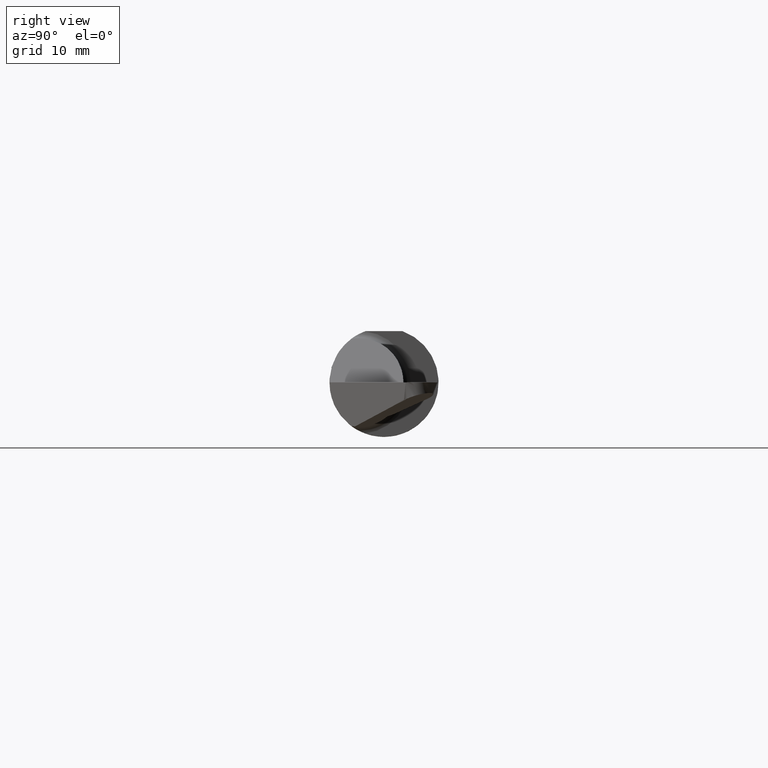
[diagram: clean part render]
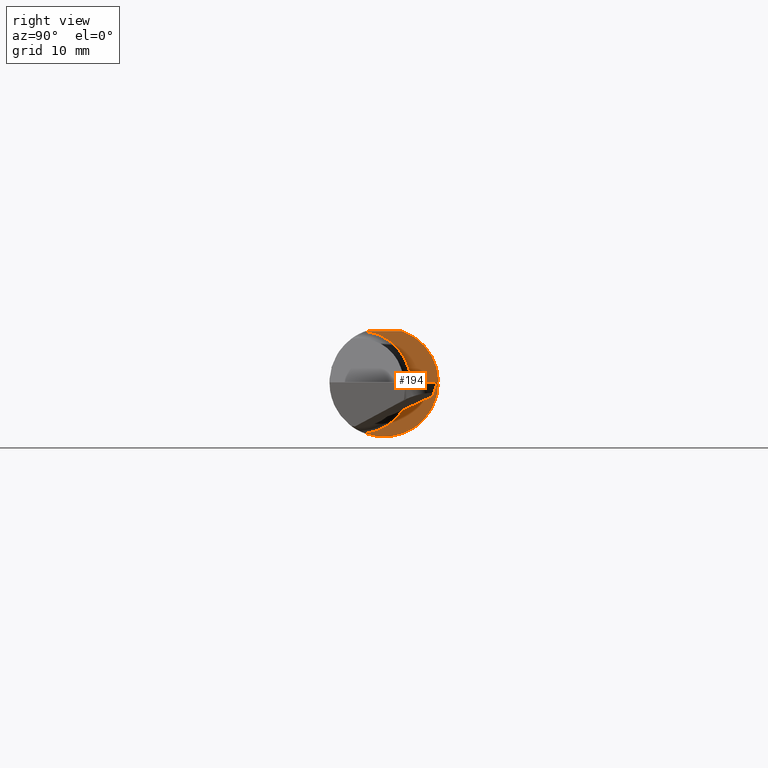
[diagram: same view with one face highlighted and labeled with its STEP entity id]
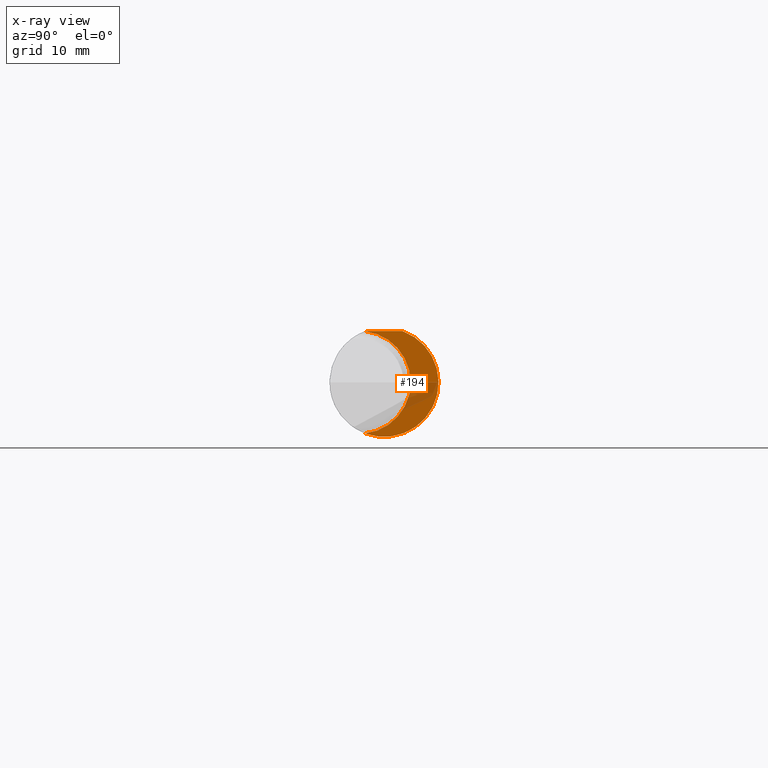
[diagram: x-ray of the same camera — body ghosted, the highlighted face saturated]
A machine part, right view. The second image highlights one B-rep face of the part: STEP entity #194.
The next image is the same camera in x-ray: the body ghosted, the highlighted face saturated — about 17% of this face is hidden behind the body in this view.
In plain terms, the highlighted planar face has unit normal (1, 0, 0).
Its self-contained STEP definition (entity closure, byte-faithful):
#6 = CARTESIAN_POINT ( 'NONE',  ( 1.409400000000000652, -0.08534999999999998144, 0.000000000000000000 ) ) ;
#46 = VERTEX_POINT ( 'NONE', #677 ) ;
#62 = FACE_OUTER_BOUND ( 'NONE', #218, .T. ) ;
#81 = AXIS2_PLACEMENT_3D ( 'NONE', #907, #849, #142 ) ;
#101 = AXIS2_PLACEMENT_3D ( 'NONE', #476, #404, #700 ) ;
#119 = CARTESIAN_POINT ( 'NONE',  ( 1.409400000000000652, -0.06325108694718373226, 0.1763499999999999512 ) ) ;
#142 = DIRECTION ( 'NONE',  ( 0.000000000000000000, 0.000000000000000000, -1.000000000000000000 ) ) ;
#186 = AXIS2_PLACEMENT_3D ( 'NONE', #925, #279, #564 ) ;
#194 = ADVANCED_FACE ( 'NONE', ( #62 ), #847, .T. ) ;
#218 = EDGE_LOOP ( 'NONE', ( #503, #466, #518, #713 ) ) ;
#254 = EDGE_CURVE ( 'NONE', #755, #46, #392, .T. ) ;
#279 = DIRECTION ( 'NONE',  ( 1.000000000000000000, 0.000000000000000000, 0.000000000000000000 ) ) ;
#295 = DIRECTION ( 'NONE',  ( 0.000000000000000000, 0.000000000000000000, 1.000000000000000000 ) ) ;
#317 = DIRECTION ( 'NONE',  ( 0.000000000000000000, -1.000000000000000000, 0.000000000000000000 ) ) ;
#349 = CARTESIAN_POINT ( 'NONE',  ( 1.409400000000000652, -0.06476652021089474021, -0.1757990908957487997 ) ) ;
#370 = EDGE_CURVE ( 'NONE', #46, #660, #924, .T. ) ;
#377 = VECTOR ( 'NONE', #317, 39.37007874015748143 ) ;
#392 = CIRCLE ( 'NONE', #186, 0.1873499999999999888 ) ;
#404 = DIRECTION ( 'NONE',  ( 1.000000000000000000, 0.000000000000000000, 0.000000000000000000 ) ) ;
#441 = DIRECTION ( 'NONE',  ( -1.000000000000000000, -0.000000000000000000, -0.000000000000000000 ) ) ;
#464 = EDGE_CURVE ( 'NONE', #930, #755, #747, .T. ) ;
#466 = ORIENTED_EDGE ( 'NONE', *, *, #464, .T. ) ;
#476 = CARTESIAN_POINT ( 'NONE',  ( 1.409400000000000652, 0.09165000000000074476, 0.000000000000000000 ) ) ;
#503 = ORIENTED_EDGE ( 'NONE', *, *, #626, .T. ) ;
#518 = ORIENTED_EDGE ( 'NONE', *, *, #254, .T. ) ;
#564 = DIRECTION ( 'NONE',  ( 0.000000000000000000, 0.000000000000000000, -1.000000000000000000 ) ) ;
#612 = CARTESIAN_POINT ( 'NONE',  ( 1.409400000000000652, 0.1000000000000000056, 0.1763499999999999512 ) ) ;
#626 = EDGE_CURVE ( 'NONE', #660, #930, #919, .T. ) ;
#660 = VERTEX_POINT ( 'NONE', #349 ) ;
#677 = CARTESIAN_POINT ( 'NONE',  ( 1.409400000000000652, -0.06476652021089474021, 0.1757990908957487997 ) ) ;
#700 = DIRECTION ( 'NONE',  ( 0.000000000000000000, 0.000000000000000000, -1.000000000000000000 ) ) ;
#713 = ORIENTED_EDGE ( 'NONE', *, *, #370, .T. ) ;
#734 = CARTESIAN_POINT ( 'NONE',  ( 1.409400000000000652, 0.06325108694718227509, 0.1763499999999999512 ) ) ;
#747 = LINE ( 'NONE', #612, #377 ) ;
#755 = VERTEX_POINT ( 'NONE', #119 ) ;
#840 = AXIS2_PLACEMENT_3D ( 'NONE', #6, #441, #295 ) ;
#847 = PLANE ( 'NONE',  #101 ) ;
#849 = DIRECTION ( 'NONE',  ( 1.000000000000000000, 0.000000000000000000, 0.000000000000000000 ) ) ;
#907 = CARTESIAN_POINT ( 'NONE',  ( 1.409400000000000652, 0.000000000000000000, 0.000000000000000000 ) ) ;
#919 = CIRCLE ( 'NONE', #81, 0.1873499999999999888 ) ;
#924 = CIRCLE ( 'NONE', #840, 0.1770000000000007401 ) ;
#925 = CARTESIAN_POINT ( 'NONE',  ( 1.409400000000000652, 0.000000000000000000, 0.000000000000000000 ) ) ;
#930 = VERTEX_POINT ( 'NONE', #734 ) ;